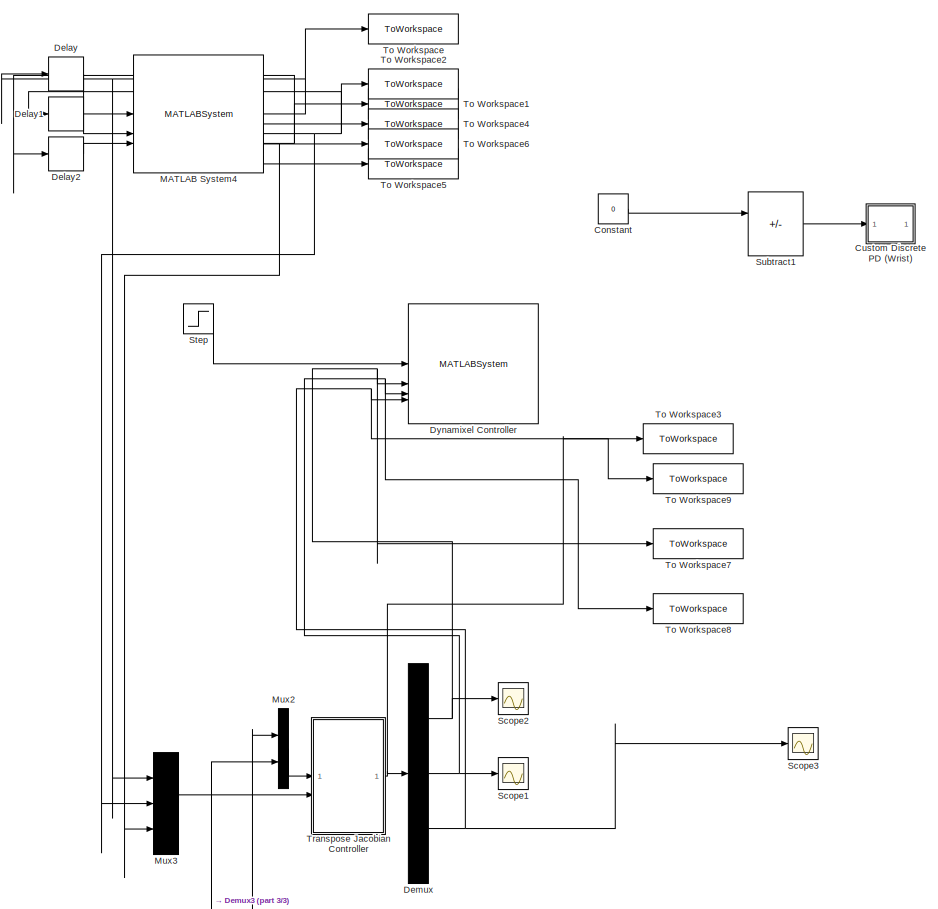
[diagram: root canvas - part 1/3, top right region]
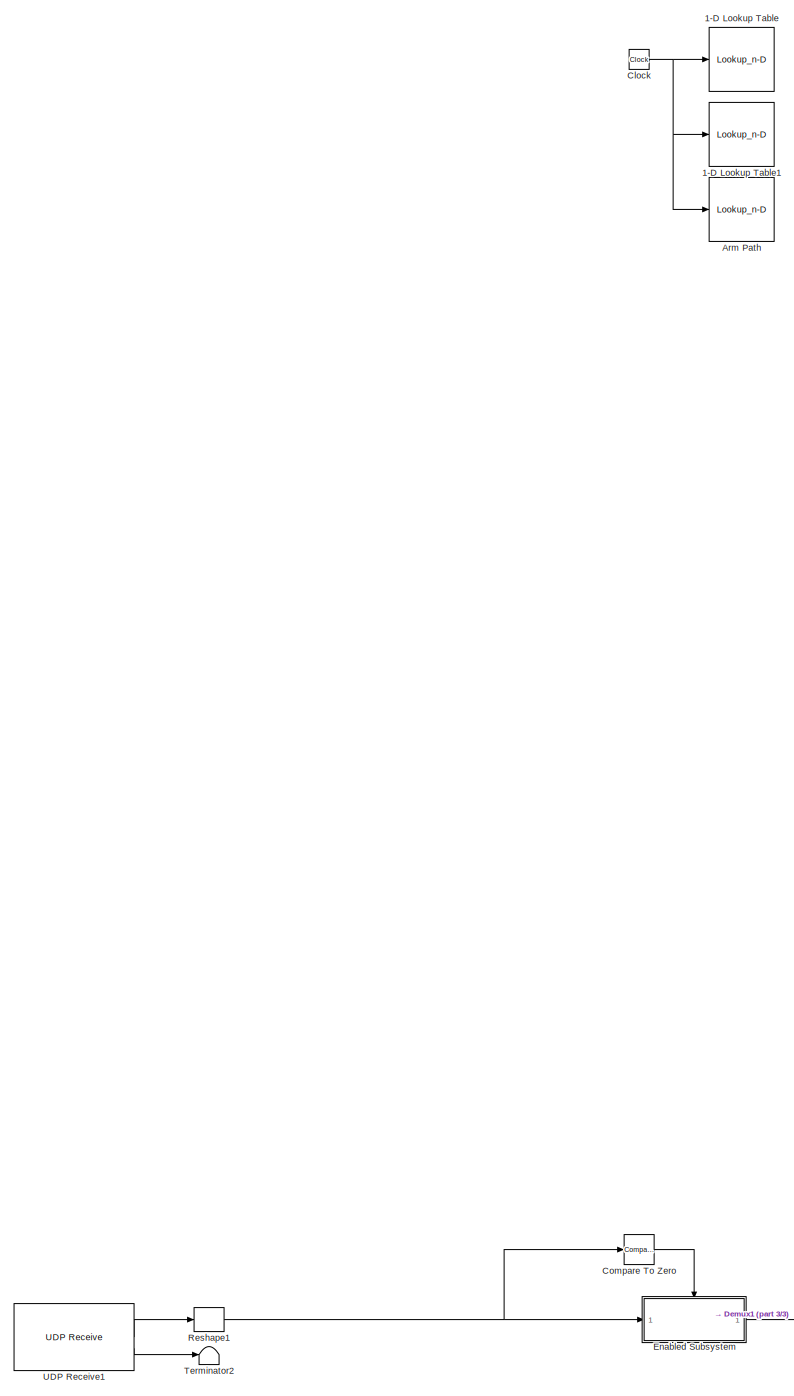
[diagram: root canvas - part 2/3, left side, full height]
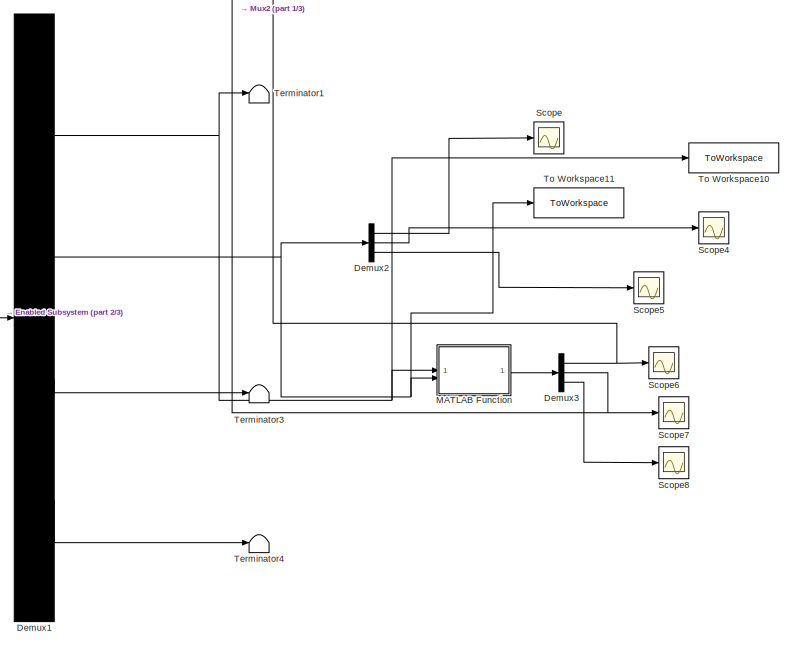
[diagram: root canvas - part 3/3, bottom right region]
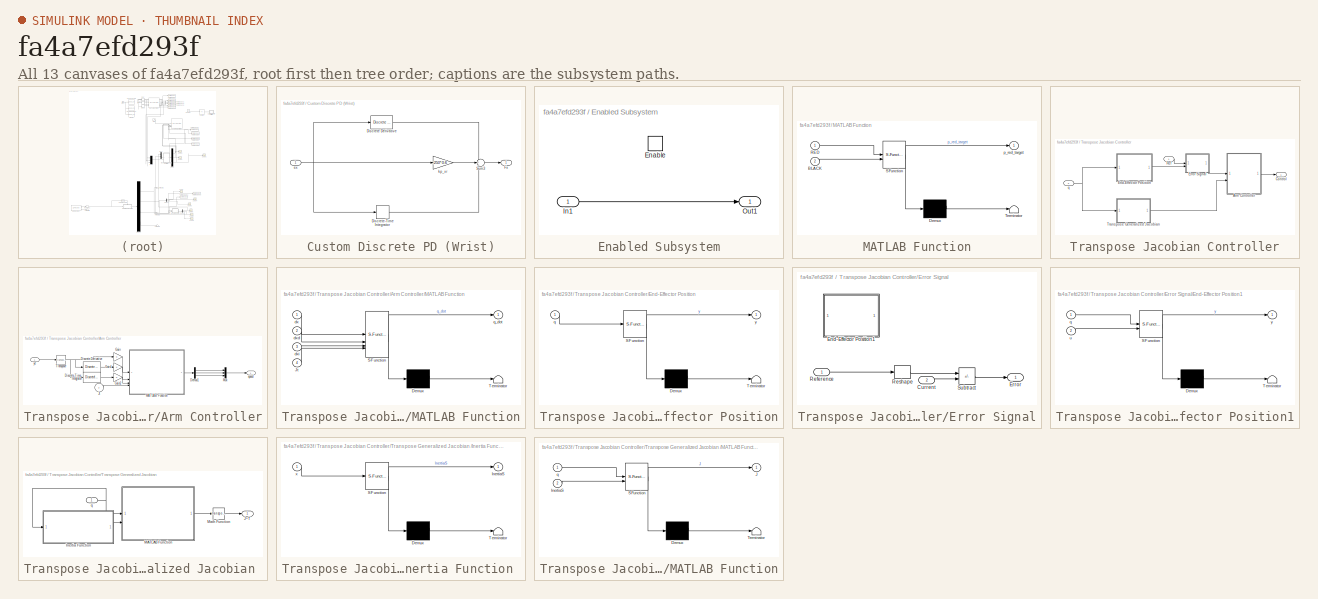
[diagram: thumbnail index - all 13 canvases of the model, root first then tree order]
MODEL slx_fa4a7efd293f
KIND model
CONFIG AbsTol = auto
CONFIG EnableMultiTasking = off
CONFIG FixedStep = 0.01
CONFIG MaxStep = auto
CONFIG MinStep = auto
CONFIG RelTol = 1e-3
CONFIG SampleTimeConstraint = Unconstrained
CONFIG SolverName = ode4
CONFIG StartTime = 0.0
CONFIG StopTime = 15
BLOCK [Lookup_n-D] 1-D Lookup Table
  BreakpointsForDimension1 = [0\n0.300000000000000\n0.600000000000000\n0.900000000000000\n1.20000000000000\n1.50000000000000\n1.80000000000000\n2.10000000000000\n2.40000000000000\n2.70000000000000\n3\n3.30000000000000\n3.60000000000000\n3.90000000000000\n4.20000000000000\n4.50000000000000\n4.80000000000000\n5.10000000000000\n5.40000000000000\n5.70000000000000\n6\n6.30000000000000\n6.60000000000000\n6.90000000000000\n7.20000000000000\n7.50000000000000...<+1163ch>  <repeated x3 — deduplicated; at blocks: 1-D Lookup Table, 1-D Lookup Table1, Arm Path>
  Commented = on
  InputPortMap = u0
  InternalRulePriority = Speed
  NumberOfTableDimensions = 1
  RndMeth = Simplest
  Table = [1.57000000000000\n1.54816700100684\n1.49097838714515\n1.40738374526561\n1.30517963261499\n1.19037595061406\n1.06817443571262\n0.943755752477061\n0.821348547944454\n0.703746844506339\n0.593625926874354\n0.493661079760138\n0.406301951764504\n0.332150464577563\n0.270904238844892\n0.222254718367453\n0.185893346946205\n0.161510391400890\n0.148507079640713\n0.145619174532266\n0.151489118608687\n0.164759354403110\n0.18407232...<+1425ch>
BLOCK [Lookup_n-D] 1-D Lookup Table1
  Commented = on
  InputPortMap = u0
  InternalRulePriority = Speed
  NumberOfTableDimensions = 1
  RndMeth = Simplest
  Table = [1.57000000000000\n1.57050205302399\n1.57012603662556\n1.56661162770156\n1.55794488562962\n1.54285929753597\n1.52042643744410\n1.48973080887809\n1.45048425411524\n1.40334397159352\n1.34904540279350\n1.28832398919572\n1.22195859634965\n1.15108368811919\n1.07700776270488\n1.00104050705195\n0.924491608105622\n0.848670299127955\n0.774774399465782\n0.703745216061739\n0.636488084287358\n0.573908339514172\n0.516911317113714\n0...<+1419ch>
BLOCK [Lookup_n-D] Arm Path
  Commented = on
  InputPortMap = u0
  InternalRulePriority = Speed
  NumberOfTableDimensions = 1
  RndMeth = Simplest
  Table = [4.24105195407198e-14\n0.00792484586540242\n0.0289766808051712\n0.0591226460349239\n0.0945266677508536\n0.132723049258546\n0.171865961865416\n0.210118613330810\n0.245977670299252\n0.278442298917847\n0.306553255045181\n0.329351294539841\n0.345978769405532\n0.356409999236062\n0.361026479142565\n0.360212485455902\n0.354352294506931\n0.343830913350855\n0.329212797758318\n0.311475554957133\n0.291654729751521\n0.27078586694...<+1414ch>
BLOCK [Clock] Clock
BLOCK [Reference] Compare To Zero  REF=simulink/Logic and Bit
Operations/Compare
To Zero
  SourceBlock = simulink/Logic and Bit\nOperations/Compare\nTo Zero
  SourceType = Compare To Zero
BLOCK [Constant] Constant
  Commented = on
  Value = 0
BLOCK [SubSystem] Custom Discrete PD (Wrist)
  Commented = on
BLOCK [Reference] Custom Discrete PD (Wrist)/Discrete Derivative  REF=simulink/Discrete/Discrete Derivative
  SourceBlock = simulink/Discrete/Discrete Derivative
  SourceType = Discrete Derivative
BLOCK [DiscreteIntegrator] Custom Discrete PD (Wrist)/Discrete-Time Integrator
  ICPrevOutput = DiscIntNeverNeededParam
  ICPrevScaledInput = DiscIntNeverNeededParam
  InitialConditionSetting = Auto
  SampleTime = -1
  gainval = 100
BLOCK [Outport] Custom Discrete PD (Wrist)/Fx
  VectorParamsAs1DForOutWhenUnconnected = off
BLOCK [Sum] Custom Discrete PD (Wrist)/Sum3
  Inputs = +++
  NameLocation = top
BLOCK [Inport] Custom Discrete PD (Wrist)/ex
BLOCK [Gain] Custom Discrete PD (Wrist)/kp_xr
  Gain = 250*0.6
BLOCK [Delay] Delay
  DelayLength = 1
  InputPortMap = u0
BLOCK [Delay] Delay1
  DelayLength = 1
  InputPortMap = u0
BLOCK [Delay] Delay2
  DelayLength = 1
  InputPortMap = u0
BLOCK [Demux] Demux
  Outputs = 3
BLOCK [Demux] Demux1
  Outputs = [4,3,3,6]
BLOCK [Demux] Demux2
  Outputs = 3
BLOCK [Demux] Demux3
  Outputs = 3
BLOCK [MATLABSystem] Dynamixel Controller
  ACCELERATION_TIME = 0
  CURRENT_LIMIT = 850
  MAX_POSITION = 3072
  MIN_POSITION = 1024
  MOVE_TIME = 0
  MaskDisplay = disp('Dynamixel_Controller');\nport_label('input',1,'Control_Mode');\nport_label('input',2,'Joint1_Command');\nport_label('input',3,'Joint2_Command');\nport_label('input',4,'Joint3_Command');
  MaskType = Dynamixel_Controller
  POSITION_D_GAIN = 200
  POSITION_I_GAIN = 0
  POSITION_P_GAIN = 400
  SPEED_I_GAIN = 100
  SPEED_P_GAIN = 400
  SampleTime = 0.01
  System = Dynamixel_Controller
  VELOCITY_LIMIT = 50
BLOCK [SubSystem] Enabled Subsystem
  TreatAsAtomicUnit = on
BLOCK [EnablePort] Enabled Subsystem/Enable
BLOCK [Inport] Enabled Subsystem/In1
BLOCK [Outport] Enabled Subsystem/Out1
  VectorParamsAs1DForOutWhenUnconnected = off
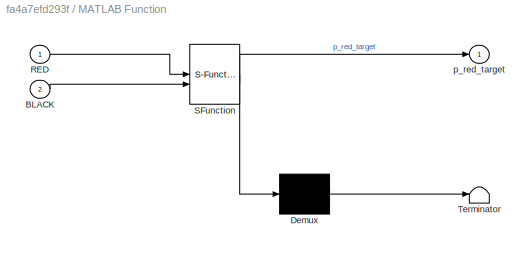
BLOCK [SubSystem] MATLAB Function
  ErrorFcn = Stateflow.Translate.translate
  PermitHierarchicalResolution = ExplicitOnly
  SFBlockType = MATLAB Function
  TreatAsAtomicUnit = on
BLOCK [Demux] MATLAB Function/ Demux 
  Outputs = 1
BLOCK [S-Function] MATLAB Function/ SFunction 
  EnableBusSupport = off
  FunctionName = sf_sfun
  PortCounts = [2 2]
  SFcnIsStateOwnerBlock = off
  SFunctionDeploymentMode = off
  Tag = Stateflow S-Function 2
BLOCK [Terminator] MATLAB Function/ Terminator 
BLOCK [Inport] MATLAB Function/BLACK
  Port = 2
BLOCK [Inport] MATLAB Function/RED
BLOCK [Outport] MATLAB Function/p_red_target
BLOCK [MATLABSystem] MATLAB System4
  MaskDisplay = disp('ReadArm_Position_Rates');\nport_label('input',1,'u1');\nport_label('input',2,'u2');\nport_label('input',3,'u3');\nport_label('output',1,'theta1');\nport_label('output',2,'theta2');\nport_label('output',3,'theta3');\nport_label('output',4,'omega1');\nport_label('output',5,'omega2');\nport_label('output',6,'omega3');
  MaskType = ReadArm_Position_Rates
  SampleTime = 0.01
  System = ReadArm_Position_Rates
BLOCK [Mux] Mux2
  DisplayOption = bar
  Inputs = 2
BLOCK [Mux] Mux3
  DisplayOption = bar
  Inputs = 3
BLOCK [Reshape] Reshape1
  OutputDimensionality = Customize
  OutputDimensions = [10,1]
BLOCK [Scope] Scope
  Floating = off
  NumInputPorts = 1
  ScopeSpecificationString = Simulink.scopes.TimeScopeBlockCfg('CurrentConfiguration', extmgr.ConfigurationSet(extmgr.Configuration('Core','General UI',true),extmgr.Configuration('Core','Source UI',true),extmgr.Configuration('Sources','WiredSimulink',true,'DataLoggingVariableName','ScopeData1'),extmgr.Configuration('Visuals','Time Domain',true,'SerializedDisplays',{struct('MinYLimReal','1830.71071','MaxYLimReal','1831.33189',...<+1419ch>
BLOCK [Scope] Scope1
  Floating = off
  NumInputPorts = 1
  ScopeSpecificationString = Simulink.scopes.TimeScopeBlockCfg('CurrentConfiguration', extmgr.ConfigurationSet(extmgr.Configuration('Core','General UI',true),extmgr.Configuration('Core','Source UI',true),extmgr.Configuration('Sources','WiredSimulink',true,'DataLoggingVariableName','ScopeData1'),extmgr.Configuration('Visuals','Time Domain',true,'SerializedDisplays',{struct('MinYLimReal','-1619.43857','MaxYLimReal','329.54033',...<+1413ch>
BLOCK [Scope] Scope2
  Floating = off
  NumInputPorts = 1
  ScopeSpecificationString = Simulink.scopes.TimeScopeBlockCfg('CurrentConfiguration', extmgr.ConfigurationSet(extmgr.Configuration('Core','General UI',true),extmgr.Configuration('Core','Source UI',true),extmgr.Configuration('Sources','WiredSimulink',true,'DataLoggingVariableName','ScopeData2'),extmgr.Configuration('Visuals','Time Domain',true,'SerializedDisplays',{struct('MinYLimReal','-2815.46028','MaxYLimReal','1700.17338'...<+1415ch>
BLOCK [Scope] Scope3
  Floating = off
  NumInputPorts = 1
  ScopeSpecificationString = Simulink.scopes.TimeScopeBlockCfg('CurrentConfiguration', extmgr.ConfigurationSet(extmgr.Configuration('Core','General UI',true),extmgr.Configuration('Core','Source UI',true),extmgr.Configuration('Sources','WiredSimulink',true,'DataLoggingVariableName','ScopeData1'),extmgr.Configuration('Visuals','Time Domain',true,'SerializedDisplays',{struct('MinYLimReal','-2520.37703','MaxYLimReal','2315.4074',...<+1711ch>
BLOCK [Scope] Scope4
  Floating = off
  NumInputPorts = 1
  ScopeSpecificationString = Simulink.scopes.TimeScopeBlockCfg('CurrentConfiguration', extmgr.ConfigurationSet(extmgr.Configuration('Core','General UI',true),extmgr.Configuration('Core','Source UI',true),extmgr.Configuration('Sources','WiredSimulink',true,'DataLoggingVariableName','ScopeData2'),extmgr.Configuration('Visuals','Time Domain',true),extmgr.Configuration('Tools','Plot Navigation',true),extmgr.Configuration('Tools',...<+40ch>
BLOCK [Scope] Scope5
  Floating = off
  NumInputPorts = 1
  ScopeSpecificationString = Simulink.scopes.TimeScopeBlockCfg('CurrentConfiguration', extmgr.ConfigurationSet(extmgr.Configuration('Core','General UI',true),extmgr.Configuration('Core','Source UI',true),extmgr.Configuration('Sources','WiredSimulink',true,'DataLoggingVariableName','ScopeData3'),extmgr.Configuration('Visuals','Time Domain',true,'SerializedDisplays',{struct('MinYLimReal','-1.5523','MaxYLimReal','-1.54736','YLab...<+1365ch>
BLOCK [Scope] Scope6
  Floating = off
  NumInputPorts = 1
  ScopeSpecificationString = Simulink.scopes.TimeScopeBlockCfg('CurrentConfiguration', extmgr.ConfigurationSet(extmgr.Configuration('Core','General UI',true),extmgr.Configuration('Core','Source UI',true),extmgr.Configuration('Sources','WiredSimulink',true,'DataLoggingVariableName','ScopeData4'),extmgr.Configuration('Visuals','Time Domain',true,'SerializedDisplays',{struct('MinYLimReal','0.71807','MaxYLimReal','0.7186','YLabel...<+1361ch>
BLOCK [Scope] Scope7
  Floating = off
  NumInputPorts = 1
  ScopeSpecificationString = Simulink.scopes.TimeScopeBlockCfg('CurrentConfiguration', extmgr.ConfigurationSet(extmgr.Configuration('Core','General UI',true),extmgr.Configuration('Core','Source UI',true),extmgr.Configuration('Sources','WiredSimulink',true,'DataLoggingVariableName','ScopeData5'),extmgr.Configuration('Visuals','Time Domain',true,'SerializedDisplays',{struct('MinYLimReal','0.05504','MaxYLimReal','0.05546','YLabe...<+1395ch>
BLOCK [Scope] Scope8
  Floating = off
  NumInputPorts = 1
  ScopeSpecificationString = Simulink.scopes.TimeScopeBlockCfg('CurrentConfiguration', extmgr.ConfigurationSet(extmgr.Configuration('Core','General UI',true),extmgr.Configuration('Core','Source UI',true),extmgr.Configuration('Sources','WiredSimulink',true,'DataLoggingVariableName','ScopeData8'),extmgr.Configuration('Visuals','Time Domain',true,'SerializedDisplays',{struct('MinYLimReal','-1.00000','MaxYLimReal','1.00000','YLab...<+1367ch>
BLOCK [Step] Step
  After = 3
  SampleTime = 0
  Time = 0.3
BLOCK [Sum] Subtract1
  Commented = on
  IconShape = rectangular
  Inputs = +-
BLOCK [Terminator] Terminator1
BLOCK [Terminator] Terminator2
BLOCK [Terminator] Terminator3
BLOCK [Terminator] Terminator4
BLOCK [ToWorkspace] To Workspace
  FixptAsFi = on
  MaxDataPoints = inf
  SampleTime = -1
  Save2DSignal = 2-D array (concatenate along first dimension)
  VariableName = theta1
BLOCK [ToWorkspace] To Workspace1
  FixptAsFi = on
  MaxDataPoints = inf
  SampleTime = -1
  Save2DSignal = 2-D array (concatenate along first dimension)
  VariableName = theta3
BLOCK [ToWorkspace] To Workspace10
  FixptAsFi = on
  MaxDataPoints = inf
  SampleTime = -1
  Save2DSignal = 2-D array (concatenate along first dimension)
  VariableName = RED
BLOCK [ToWorkspace] To Workspace11
  FixptAsFi = on
  MaxDataPoints = inf
  SampleTime = -1
  Save2DSignal = 2-D array (concatenate along first dimension)
  VariableName = BLACK
BLOCK [ToWorkspace] To Workspace2
  FixptAsFi = on
  MaxDataPoints = inf
  SampleTime = -1
  Save2DSignal = 2-D array (concatenate along first dimension)
  VariableName = theta2
BLOCK [ToWorkspace] To Workspace3
  FixptAsFi = on
  MaxDataPoints = inf
  SampleTime = -1
  Save2DSignal = 2-D array (concatenate along first dimension)
  VariableName = tau
BLOCK [ToWorkspace] To Workspace4
  FixptAsFi = on
  MaxDataPoints = inf
  SampleTime = -1
  Save2DSignal = 2-D array (concatenate along first dimension)
  VariableName = omega1
BLOCK [ToWorkspace] To Workspace5
  FixptAsFi = on
  MaxDataPoints = inf
  SampleTime = -1
  Save2DSignal = 2-D array (concatenate along first dimension)
  VariableName = omega3
BLOCK [ToWorkspace] To Workspace6
  FixptAsFi = on
  MaxDataPoints = inf
  SampleTime = -1
  Save2DSignal = 2-D array (concatenate along first dimension)
  VariableName = omega2
BLOCK [ToWorkspace] To Workspace7
  FixptAsFi = on
  MaxDataPoints = inf
  SampleTime = -1
  Save2DSignal = 2-D array (concatenate along first dimension)
  VariableName = tau1
BLOCK [ToWorkspace] To Workspace8
  FixptAsFi = on
  MaxDataPoints = inf
  SampleTime = -1
  Save2DSignal = 2-D array (concatenate along first dimension)
  VariableName = tau2
BLOCK [ToWorkspace] To Workspace9
  FixptAsFi = on
  MaxDataPoints = inf
  SampleTime = -1
  Save2DSignal = 2-D array (concatenate along first dimension)
  VariableName = tau3
BLOCK [SubSystem] Transpose Jacobian Controller
BLOCK [SubSystem] Transpose Jacobian Controller/Arm Controller
BLOCK [Demux] Transpose Jacobian Controller/Arm Controller/Demux1
  Outputs = 3
BLOCK [Reference] Transpose Jacobian Controller/Arm Controller/Discrete Derivative  REF=simulink/Discrete/Discrete Derivative
  SourceBlock = simulink/Discrete/Discrete Derivative
  SourceType = Discrete Derivative
BLOCK [DiscreteIntegrator] Transpose Jacobian Controller/Arm Controller/Discrete-Time Integrator
  ICPrevOutput = DiscIntNeverNeededParam
  ICPrevScaledInput = DiscIntNeverNeededParam
  InitialConditionSetting = Auto
  SampleTime = -1
BLOCK [Gain] Transpose Jacobian Controller/Arm Controller/Gain
BLOCK [Gain] Transpose Jacobian Controller/Arm Controller/Gain1
BLOCK [Gain] Transpose Jacobian Controller/Arm Controller/Gain2
BLOCK [Inport] Transpose Jacobian Controller/Arm Controller/Jt
  Port = 2
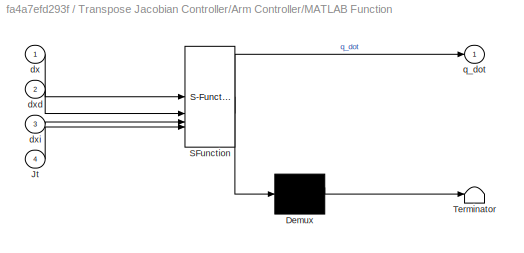
BLOCK [SubSystem] Transpose Jacobian Controller/Arm Controller/MATLAB Function
  ErrorFcn = Stateflow.Translate.translate
  PermitHierarchicalResolution = ExplicitOnly
  SFBlockType = MATLAB Function
  TreatAsAtomicUnit = on
BLOCK [Demux] Transpose Jacobian Controller/Arm Controller/MATLAB Function/ Demux 
  Outputs = 1
BLOCK [S-Function] Transpose Jacobian Controller/Arm Controller/MATLAB Function/ SFunction 
  EnableBusSupport = off
  FunctionName = sf_sfun
  PortCounts = [4 2]
  SFcnIsStateOwnerBlock = off
  SFunctionDeploymentMode = off
  Tag = Stateflow S-Function 23
BLOCK [Terminator] Transpose Jacobian Controller/Arm Controller/MATLAB Function/ Terminator 
BLOCK [Inport] Transpose Jacobian Controller/Arm Controller/MATLAB Function/Jt
  Port = 4
BLOCK [Inport] Transpose Jacobian Controller/Arm Controller/MATLAB Function/dx
BLOCK [Inport] Transpose Jacobian Controller/Arm Controller/MATLAB Function/dxd
  Port = 2
BLOCK [Inport] Transpose Jacobian Controller/Arm Controller/MATLAB Function/dxi
  Port = 3
BLOCK [Outport] Transpose Jacobian Controller/Arm Controller/MATLAB Function/q_dot
  VectorParamsAs1DForOutWhenUnconnected = off
BLOCK [Mux] Transpose Jacobian Controller/Arm Controller/Mux
  DisplayOption = bar
  Inputs = 3
BLOCK [Math] Transpose Jacobian Controller/Arm Controller/Transpose
  Operator = transpose
BLOCK [Outport] Transpose Jacobian Controller/Arm Controller/speed
  VectorParamsAs1DForOutWhenUnconnected = off
BLOCK [Inport] Transpose Jacobian Controller/Arm Controller/ye
BLOCK [Outport] Transpose Jacobian Controller/Control
  VectorParamsAs1DForOutWhenUnconnected = off
BLOCK [SubSystem] Transpose Jacobian Controller/End-Effector Position
  ErrorFcn = Stateflow.Translate.translate
  PermitHierarchicalResolution = ExplicitOnly
  SFBlockType = MATLAB Function
  TreatAsAtomicUnit = on
BLOCK [Demux] Transpose Jacobian Controller/End-Effector Position/ Demux 
  Outputs = 1
BLOCK [S-Function] Transpose Jacobian Controller/End-Effector Position/ SFunction 
  EnableBusSupport = off
  FunctionName = sf_sfun
  PortCounts = [1 2]
  SFcnIsStateOwnerBlock = off
  SFunctionDeploymentMode = off
  Tag = Stateflow S-Function 99
BLOCK [Terminator] Transpose Jacobian Controller/End-Effector Position/ Terminator 
BLOCK [Inport] Transpose Jacobian Controller/End-Effector Position/q
BLOCK [Outport] Transpose Jacobian Controller/End-Effector Position/y
  VectorParamsAs1DForOutWhenUnconnected = off
BLOCK [SubSystem] Transpose Jacobian Controller/Error Signal
BLOCK [Inport] Transpose Jacobian Controller/Error Signal/Current
  Port = 2
BLOCK [SubSystem] Transpose Jacobian Controller/Error Signal/End-Effector Position1
  Commented = on
  ErrorFcn = Stateflow.Translate.translate
  PermitHierarchicalResolution = ExplicitOnly
  SFBlockType = MATLAB Function
  TreatAsAtomicUnit = on
BLOCK [Demux] Transpose Jacobian Controller/Error Signal/End-Effector Position1/ Demux 
  Outputs = 1
BLOCK [S-Function] Transpose Jacobian Controller/Error Signal/End-Effector Position1/ SFunction 
  EnableBusSupport = off
  FunctionName = sf_sfun
  PortCounts = [2 2]
  SFcnIsStateOwnerBlock = off
  SFunctionDeploymentMode = off
  Tag = Stateflow S-Function 94
BLOCK [Terminator] Transpose Jacobian Controller/Error Signal/End-Effector Position1/ Terminator 
BLOCK [Inport] Transpose Jacobian Controller/Error Signal/End-Effector Position1/q
BLOCK [Inport] Transpose Jacobian Controller/Error Signal/End-Effector Position1/u
  Port = 2
BLOCK [Outport] Transpose Jacobian Controller/Error Signal/End-Effector Position1/y
  VectorParamsAs1DForOutWhenUnconnected = off
BLOCK [Outport] Transpose Jacobian Controller/Error Signal/Error
  VectorParamsAs1DForOutWhenUnconnected = off
BLOCK [Inport] Transpose Jacobian Controller/Error Signal/Reference
BLOCK [Reshape] Transpose Jacobian Controller/Error Signal/Reshape
  OutputDimensionality = Row vector (2-D)
BLOCK [Sum] Transpose Jacobian Controller/Error Signal/Subtract
  IconShape = rectangular
  Inputs = +-
BLOCK [Inport] Transpose Jacobian Controller/Ref
BLOCK [SubSystem] Transpose Jacobian Controller/Transpose Generalized Jacobian 
BLOCK [SubSystem] Transpose Jacobian Controller/Transpose Generalized Jacobian /Inertia Function 
  ErrorFcn = Stateflow.Translate.translate
  PermitHierarchicalResolution = ExplicitOnly
  SFBlockType = MATLAB Function
  TreatAsAtomicUnit = on
BLOCK [Demux] Transpose Jacobian Controller/Transpose Generalized Jacobian /Inertia Function / Demux 
  Outputs = 1
BLOCK [S-Function] Transpose Jacobian Controller/Transpose Generalized Jacobian /Inertia Function / SFunction 
  EnableBusSupport = off
  FunctionName = sf_sfun
  PortCounts = [1 2]
  SFcnIsStateOwnerBlock = off
  SFunctionDeploymentMode = off
  Tag = Stateflow S-Function 101
BLOCK [Terminator] Transpose Jacobian Controller/Transpose Generalized Jacobian /Inertia Function / Terminator 
BLOCK [Outport] Transpose Jacobian Controller/Transpose Generalized Jacobian /Inertia Function /InertiaS
  VectorParamsAs1DForOutWhenUnconnected = off
BLOCK [Inport] Transpose Jacobian Controller/Transpose Generalized Jacobian /Inertia Function /x
BLOCK [Outport] Transpose Jacobian Controller/Transpose Generalized Jacobian /J^T
  VectorParamsAs1DForOutWhenUnconnected = off
BLOCK [SubSystem] Transpose Jacobian Controller/Transpose Generalized Jacobian /MATLAB Function
  ErrorFcn = Stateflow.Translate.translate
  PermitHierarchicalResolution = ExplicitOnly
  SFBlockType = MATLAB Function
  TreatAsAtomicUnit = on
BLOCK [Demux] Transpose Jacobian Controller/Transpose Generalized Jacobian /MATLAB Function/ Demux 
  Outputs = 1
BLOCK [S-Function] Transpose Jacobian Controller/Transpose Generalized Jacobian /MATLAB Function/ SFunction 
  EnableBusSupport = off
  FunctionName = sf_sfun
  PortCounts = [2 2]
  SFcnIsStateOwnerBlock = off
  SFunctionDeploymentMode = off
  Tag = Stateflow S-Function 100
BLOCK [Terminator] Transpose Jacobian Controller/Transpose Generalized Jacobian /MATLAB Function/ Terminator 
BLOCK [Inport] Transpose Jacobian Controller/Transpose Generalized Jacobian /MATLAB Function/InertiaS
  Port = 2
BLOCK [Outport] Transpose Jacobian Controller/Transpose Generalized Jacobian /MATLAB Function/J
  VectorParamsAs1DForOutWhenUnconnected = off
BLOCK [Inport] Transpose Jacobian Controller/Transpose Generalized Jacobian /MATLAB Function/q
BLOCK [Math] Transpose Jacobian Controller/Transpose Generalized Jacobian /Math Function
  Operator = transpose
  SignedPower = on
BLOCK [Inport] Transpose Jacobian Controller/Transpose Generalized Jacobian /q
BLOCK [Inport] Transpose Jacobian Controller/q
  Port = 2
BLOCK [Reference] UDP Receive1  REF=nvidiaSharedBlocks/UDP Receive
  SourceBlock = nvidiaSharedBlocks/UDP Receive
  SourceType = UDP Receive
NET Clock:1 -> 1-D Lookup Table1:1, 1-D Lookup Table:1, Arm Path:1
LINE Compare To Zero:1 -> Enabled Subsystem:enable
LINE Constant:1 -> Subtract1:1
LINE Custom Discrete PD (Wrist)/Discrete Derivative:1 -> Custom Discrete PD (Wrist)/Sum3:1
LINE Custom Discrete PD (Wrist)/Discrete-Time Integrator:1 -> Custom Discrete PD (Wrist)/Sum3:3
LINE Custom Discrete PD (Wrist)/Sum3:1 -> Custom Discrete PD (Wrist)/Fx:1
NET Custom Discrete PD (Wrist)/ex:1 -> Custom Discrete PD (Wrist)/Discrete Derivative:1, Custom Discrete PD (Wrist)/Discrete-Time Integrator:1, Custom Discrete PD (Wrist)/kp_xr:1
LINE Custom Discrete PD (Wrist)/kp_xr:1 -> Custom Discrete PD (Wrist)/Sum3:2
LINE Delay1:1 -> MATLAB System4:2
LINE Delay2:1 -> MATLAB System4:3
LINE Delay:1 -> MATLAB System4:1
NET Demux1:1 -> MATLAB Function:1, Terminator1:1, To Workspace10:1
NET Demux1:2 -> Demux2:1, MATLAB Function:2, To Workspace11:1
LINE Demux1:3 -> Terminator3:1
LINE Demux1:4 -> Terminator4:1
LINE Demux2:1 -> Scope:1
LINE Demux2:2 -> Scope4:1
LINE Demux2:3 -> Scope5:1
NET Demux3:1 -> Mux2:1, Scope6:1
NET Demux3:2 -> Mux2:2, Scope7:1
LINE Demux3:3 -> Scope8:1
NET Demux:1 -> Dynamixel Controller:2, Scope2:1, To Workspace7:1
NET Demux:2 -> Dynamixel Controller:3, Scope1:1, To Workspace8:1
NET Demux:3 -> Dynamixel Controller:4, Scope3:1, To Workspace9:1
LINE Enabled Subsystem/In1:1 -> Enabled Subsystem/Out1:1
LINE Enabled Subsystem:1 -> Demux1:1
LINE MATLAB Function:1 -> Demux3:1
NET MATLAB System4:1 -> Delay:1, Mux3:1, To Workspace:1
NET MATLAB System4:2 -> Delay1:1, Mux3:2, To Workspace2:1
NET MATLAB System4:3 -> Delay2:1, Mux3:3, To Workspace1:1
LINE MATLAB System4:4 -> To Workspace4:1
LINE MATLAB System4:5 -> To Workspace6:1
LINE MATLAB System4:6 -> To Workspace5:1
LINE Mux2:1 -> Transpose Jacobian Controller:1
LINE Mux3:1 -> Transpose Jacobian Controller:2
NET Reshape1:1 -> Compare To Zero:1, Enabled Subsystem:1
LINE Step:1 -> Dynamixel Controller:1
LINE Subtract1:1 -> Custom Discrete PD (Wrist):1
LINE Transpose Jacobian Controller/Arm Controller/Demux1:1 -> Transpose Jacobian Controller/Arm Controller/Mux:1
LINE Transpose Jacobian Controller/Arm Controller/Demux1:2 -> Transpose Jacobian Controller/Arm Controller/Mux:2
LINE Transpose Jacobian Controller/Arm Controller/Demux1:3 -> Transpose Jacobian Controller/Arm Controller/Mux:3
LINE Transpose Jacobian Controller/Arm Controller/Discrete Derivative:1 -> Transpose Jacobian Controller/Arm Controller/Gain1:1
LINE Transpose Jacobian Controller/Arm Controller/Discrete-Time Integrator:1 -> Transpose Jacobian Controller/Arm Controller/Gain2:1
LINE Transpose Jacobian Controller/Arm Controller/Gain1:1 -> Transpose Jacobian Controller/Arm Controller/MATLAB Function:2
LINE Transpose Jacobian Controller/Arm Controller/Gain2:1 -> Transpose Jacobian Controller/Arm Controller/MATLAB Function:3
LINE Transpose Jacobian Controller/Arm Controller/Gain:1 -> Transpose Jacobian Controller/Arm Controller/MATLAB Function:1
LINE Transpose Jacobian Controller/Arm Controller/Jt:1 -> Transpose Jacobian Controller/Arm Controller/MATLAB Function:4
LINE Transpose Jacobian Controller/Arm Controller/MATLAB Function:1 -> Transpose Jacobian Controller/Arm Controller/Demux1:1
LINE Transpose Jacobian Controller/Arm Controller/Mux:1 -> Transpose Jacobian Controller/Arm Controller/speed:1
NET Transpose Jacobian Controller/Arm Controller/Transpose:1 -> Transpose Jacobian Controller/Arm Controller/Discrete Derivative:1, Transpose Jacobian Controller/Arm Controller/Discrete-Time Integrator:1, Transpose Jacobian Controller/Arm Controller/Gain:1
LINE Transpose Jacobian Controller/Arm Controller/ye:1 -> Transpose Jacobian Controller/Arm Controller/Transpose:1
LINE Transpose Jacobian Controller/Arm Controller:1 -> Transpose Jacobian Controller/Control:1
LINE Transpose Jacobian Controller/End-Effector Position:1 -> Transpose Jacobian Controller/Error Signal:2
LINE Transpose Jacobian Controller/Error Signal/Current:1 -> Transpose Jacobian Controller/Error Signal/Subtract:2
LINE Transpose Jacobian Controller/Error Signal/Reference:1 -> Transpose Jacobian Controller/Error Signal/Reshape:1
LINE Transpose Jacobian Controller/Error Signal/Reshape:1 -> Transpose Jacobian Controller/Error Signal/Subtract:1
LINE Transpose Jacobian Controller/Error Signal/Subtract:1 -> Transpose Jacobian Controller/Error Signal/Error:1
LINE Transpose Jacobian Controller/Error Signal:1 -> Transpose Jacobian Controller/Arm Controller:1
LINE Transpose Jacobian Controller/Ref:1 -> Transpose Jacobian Controller/Error Signal:1
LINE Transpose Jacobian Controller/Transpose Generalized Jacobian /Inertia Function :1 -> Transpose Jacobian Controller/Transpose Generalized Jacobian /MATLAB Function:2
LINE Transpose Jacobian Controller/Transpose Generalized Jacobian /MATLAB Function:1 -> Transpose Jacobian Controller/Transpose Generalized Jacobian /Math Function:1
LINE Transpose Jacobian Controller/Transpose Generalized Jacobian /Math Function:1 -> Transpose Jacobian Controller/Transpose Generalized Jacobian /J^T:1
NET Transpose Jacobian Controller/Transpose Generalized Jacobian /q:1 -> Transpose Jacobian Controller/Transpose Generalized Jacobian /Inertia Function :1, Transpose Jacobian Controller/Transpose Generalized Jacobian /MATLAB Function:1
LINE Transpose Jacobian Controller/Transpose Generalized Jacobian :1 -> Transpose Jacobian Controller/Arm Controller:2
NET Transpose Jacobian Controller/q:1 -> Transpose Jacobian Controller/End-Effector Position:1, Transpose Jacobian Controller/Transpose Generalized Jacobian :1
NET Transpose Jacobian Controller:1 -> Demux:1, To Workspace3:1
LINE UDP Receive1:1 -> Reshape1:1
LINE UDP Receive1:2 -> Terminator2:1
note: NET lines group one-source signal fan-out (src -> all destinations, sorted); 1:1 wires keep LINE
CHART MATLAB Function states=1 transitions=1
  STATE_LABEL 'eML_blk_kernel()'
  STATE_LABEL 'SCRIPT:\nfunction p_red_target = fcn(RED, BLACK)\n\n    Pi_red_x = RED(2)/1000;\n    Pi_red_y = RED(3)/1000;\n    Pi_red_theta = RED(4);\n    Pi_black_x = BLACK(1)/1000;\n    Pi_black_y = BLACK(2)/1000;\n    Pi_black_theta = BLACK(3); \n    \n    % Define the rotation matrices for the first and second satellites\n    R_red = [cos(Pi_red_theta) -sin(Pi_red_theta) 0; sin(Pi_red_theta) cos(Pi_red_theta) 0; 0 0 ...<+783ch>'
CHART Transpose Jacobian Controller/Arm Controller/MATLAB Function states=1 transitions=1
  STATE_LABEL 'eML_blk_kernel()'
  STATE_LABEL 'SCRIPT:\nfunction q_dot  = fcn(dx, dxd, dxi, Jt)\n    %#codegen\n    \n\n    q_dot = Jt*(dx + dxi);\n                   \nend '
CHART Transpose Jacobian Controller/Error Signal/End-Effector Position1 states=1 transitions=1
  STATE_LABEL 'eML_blk_kernel()'
  STATE_LABEL 'SCRIPT:\nfunction y = ForwardKinematics(q, u)\n%#codegen\ntheta = q(3);\n\nC_bI_RED = [  cos(theta) sin(theta)\n            -sin(theta) cos(theta) ];\n                                 \ny  = C_bI_RED*u;  \nend'
CHART Transpose Jacobian Controller/End-Effector Position states=1 transitions=1
  STATE_LABEL 'eML_blk_kernel()'
  STATE_LABEL 'SCRIPT:\nfunction y = ForwardKinematics(q)\n%#codegen\n\nphi= 73.2749*pi/180;          % ARM Phi\nb0= 0.25;                     % ARM b0\na1= 0.196822;                 % ARM a1\nb1= 0.107678;                 % ARM b1\na2= 0.198152;                 % ARM a2\nb2= 0.106348;                 % ARM b2\na3= 0.062097;                 % ARM a3\nb3= 0.025153;                 % ARM b3\n\nl1     = a1+b1;\nl2     = a2+b2;\nl...<+304ch>'
CHART Transpose Jacobian Controller/Transpose Generalized Jacobian
/MATLAB Function states=1 transitions=1
  STATE_LABEL 'eML_blk_kernel()'
  STATE_LABEL 'SCRIPT:\nfunction J  = fcn(q, InertiaS)\n%#codegen\n\n% Source: http://ieeexplore.ieee.org.proxy.library.carleton.ca/stamp/stamp.jsp?tp=&arnumber=34766\nq0 = 0;\nq1     = q(1);\nq2     = q(2);\nq3     = q(3);\n\nm0            = 13.0720;     % RED Mass\nI0            = 0.2405;      % RED Inertia\nphi           = 73.2749*180/pi; % ARM Phi\nb0            = 0.25;        % ARM b0\na1            = 0.196822;    % ARM ...<+1816ch>'
CHART Transpose Jacobian Controller/Transpose Generalized Jacobian
/Inertia Function
 states=1 transitions=1
  STATE_LABEL 'eML_blk_kernel()'
  STATE_LABEL 'SCRIPT:\nfunction InertiaS = InertiaFunc3LINK(x)\n%INERTIAFUNC3LINK\n%    INERTIAS = INERTIAFUNC3LINK(I0,I1,I2,I3,A1,A2,A3,B0,B1,B2,M0,M1,M2,M3,PHI,Q0,Q1,Q2,Q3)\n\n%    This function was generated by the Symbolic Math Toolbox version 8.5.\n%    15-Mar-2022 15:58:51\n\nq0 = 0;\nq1 = x(1);\nq2 = x(2);\nq3 = x(3);\n\nm0            = 13.0720;     % RED Mass\nI0            = 0.2405;      % RED Inertia\nphi           ...<+3326ch>'
CHART  states=0 transitions=0
CHART  states=0 transitions=0
CHART  states=0 transitions=0
CHART  states=0 transitions=0
CHART  states=0 transitions=0
CHART  states=0 transitions=0
